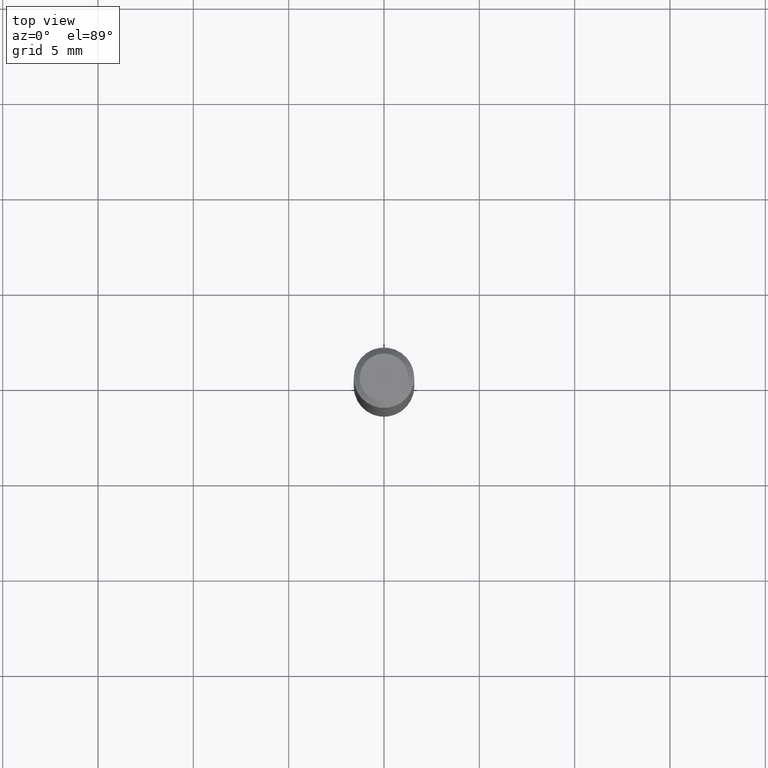
[diagram: clean part render]
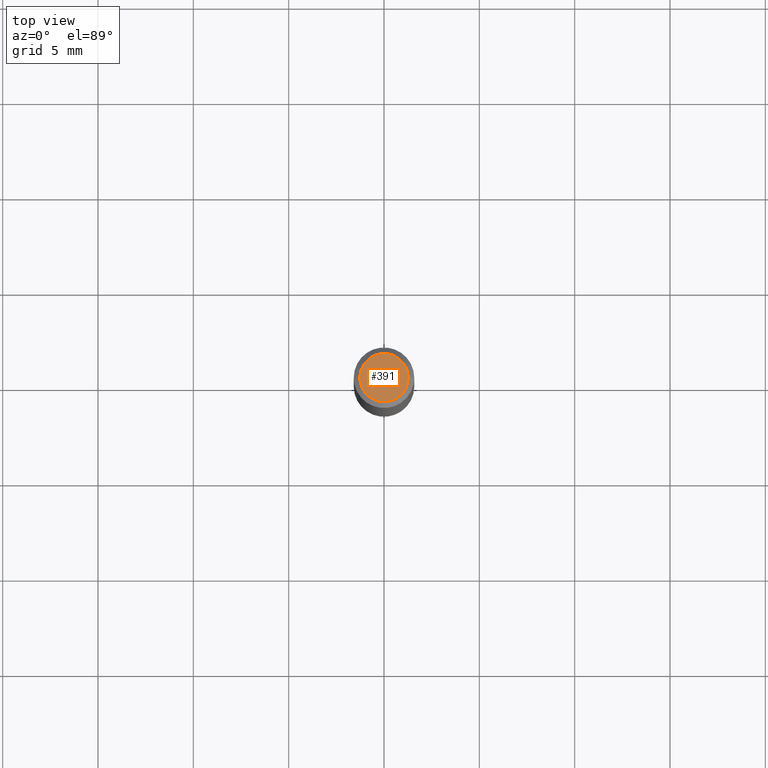
[diagram: same view with one face highlighted and labeled with its STEP entity id]
A machine part, top view. The second image highlights one B-rep face of the part: STEP entity #391.
In plain terms, the highlighted planar face has unit normal (0, -0, -1).
Its self-contained STEP definition (entity closure, byte-faithful):
#4 = DIRECTION ( 'NONE',  ( -1.000000000000000000, 6.982962677686265922E-15, -4.876176775795935793E-29 ) ) ;
#11 = AXIS2_PLACEMENT_3D ( 'NONE', #260, #301, #4 ) ;
#53 = CARTESIAN_POINT ( 'NONE',  ( 0.04999999999999999584, -4.077247707424184705E-16, -1.592040838888913461E-18 ) ) ;
#68 = CIRCLE ( 'NONE', #295, 0.04999999999999999584 ) ;
#71 = CARTESIAN_POINT ( 'NONE',  ( 3.893286209682126177E-47, -5.558580879666067980E-33, -1.592040838891559689E-18 ) ) ;
#107 = FACE_OUTER_BOUND ( 'NONE', #233, .T. ) ;
#109 = PLANE ( 'NONE',  #11 ) ;
#115 = DIRECTION ( 'NONE',  ( 1.000000000000000000, -6.982962677686265922E-15, 4.875957971899673662E-29 ) ) ;
#193 = VERTEX_POINT ( 'NONE', #53 ) ;
#198 = ORIENTED_EDGE ( 'NONE', *, *, #350, .T. ) ;
#223 = CARTESIAN_POINT ( 'NONE',  ( -0.04999999999999999584, 3.709698922520826725E-16, -1.592040838894077649E-18 ) ) ;
#224 = DIRECTION ( 'NONE',  ( -2.445468806185136597E-29, 3.491481338843145583E-15, 1.000000000000000000 ) ) ;
#233 = EDGE_LOOP ( 'NONE', ( #288, #198 ) ) ;
#260 = CARTESIAN_POINT ( 'NONE',  ( 1.946643104841063088E-47, -2.779290439833033990E-33, -7.960204194457798443E-19 ) ) ;
#288 = ORIENTED_EDGE ( 'NONE', *, *, #459, .T. ) ;
#295 = AXIS2_PLACEMENT_3D ( 'NONE', #71, #224, #115 ) ;
#301 = DIRECTION ( 'NONE',  ( 2.438088387897960049E-29, -3.491481338843145188E-15, -1.000000000000000000 ) ) ;
#307 = CIRCLE ( 'NONE', #483, 0.04999999999999999584 ) ;
#320 = VERTEX_POINT ( 'NONE', #223 ) ;
#328 = DIRECTION ( 'NONE',  ( -2.445468806185136597E-29, 3.491481338843145583E-15, 1.000000000000000000 ) ) ;
#350 = EDGE_CURVE ( 'NONE', #193, #320, #307, .T. ) ;
#391 = ADVANCED_FACE ( 'NONE', ( #107 ), #109, .F. ) ;
#448 = DIRECTION ( 'NONE',  ( 1.000000000000000000, -6.982962677686265922E-15, 4.875957971899673662E-29 ) ) ;
#459 = EDGE_CURVE ( 'NONE', #320, #193, #68, .T. ) ;
#477 = CARTESIAN_POINT ( 'NONE',  ( 3.893286209682126177E-47, -5.558580879666067980E-33, -1.592040838891559689E-18 ) ) ;
#483 = AXIS2_PLACEMENT_3D ( 'NONE', #477, #328, #448 ) ;